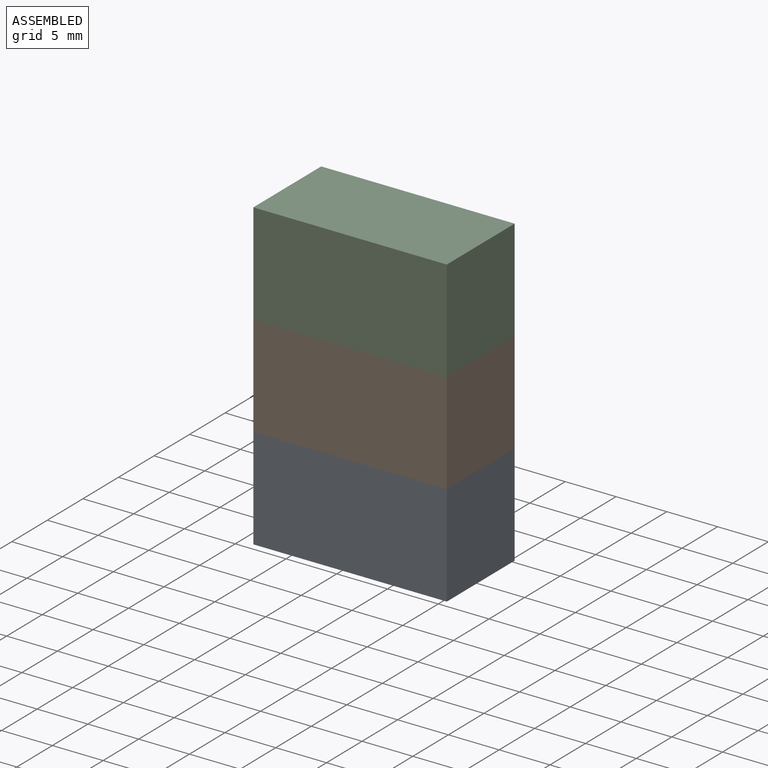
[diagram: assembled view]
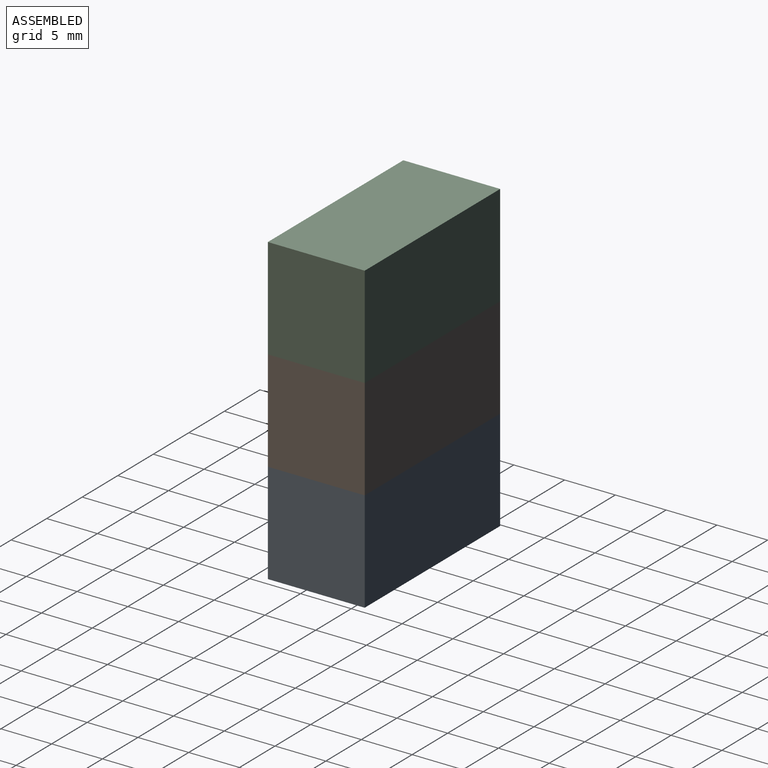
[diagram: assembled view, second angle]
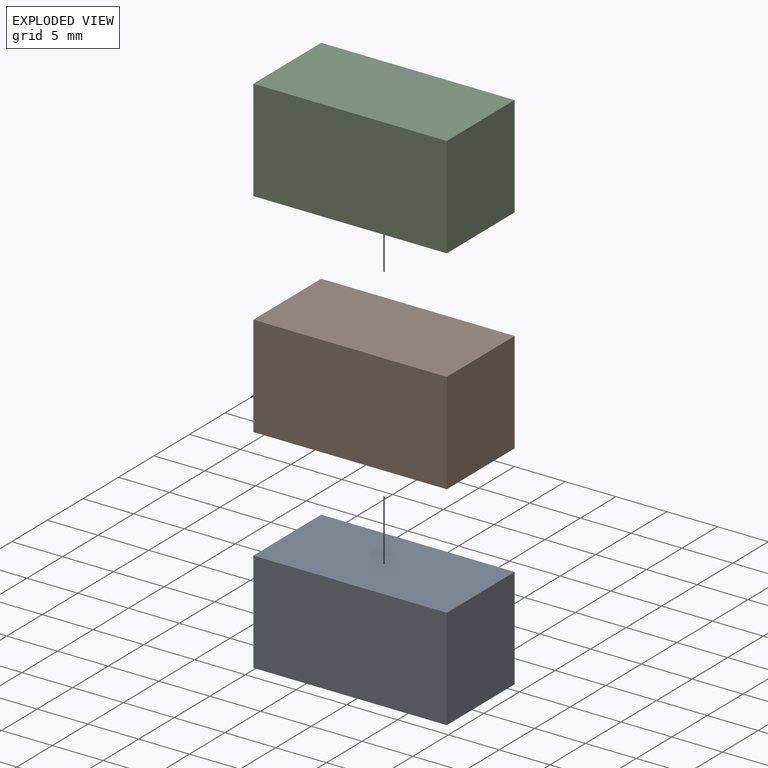
[diagram: exploded view]
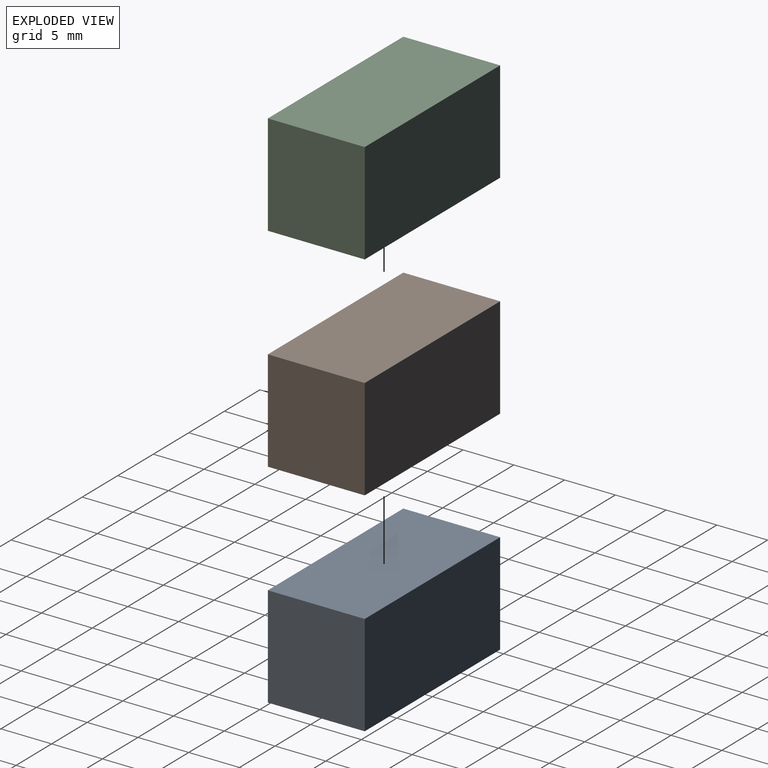
[diagram: exploded view, second angle]
FCSTD DOCUMENT  (FreeCAD 0.21R39043 (Git))
Label: test
License: All rights reserved
LicenseURL: https://en.wikipedia.org/wiki/All_rights_reserved
objects: App::FeaturePython×4, App::Link×3, Part::FeaturePython×3
note: 2 computed .brp shape members not serialized (recipe doc carries the construction recipe); baked Part::Feature solids carry a one-line shape summary decoded from their .brp
EXTERNAL_REF file=waveguide1.FCStd obj=Part
EXTERNAL_REF file=waveguide2.FCStd obj=Part
EXTERNAL_REF file=waveguide3.FCStd obj=Part

FEATURE [App::Link] Link  label="CMP_waveguide1"
  AutoLinkLabel = false
  AutoPlacement = true
  LinkedObject = -> <external waveguide1.FCStd>#Part
  SyncGroupVisibility = false
  TreeRank = 0
  _LinkOwner = 858
  _LinkVersion = 1
FEATURE [App::Link] Link001  label="CMP_waveguide2"
  AutoLinkLabel = false
  AutoPlacement = true
  LinkPlacement = pos=(0,-1.41144e-06,10) rot=(0,0,1;0rad)
  LinkedObject = -> <external waveguide2.FCStd>#Part
  Placement = pos=(0,-1.41144e-06,10) rot=(0,0,1;0rad)
  SyncGroupVisibility = false
  TreeRank = 0
  _LinkOwner = 858
  _LinkVersion = 1
FEATURE [App::Link] Link002  label="CMP_waveguide3"
  AutoLinkLabel = false
  AutoPlacement = true
  LinkPlacement = pos=(-2.38419e-06,0,20) rot=(0,0,1;0rad)
  LinkedObject = -> <external waveguide3.FCStd>#Part
  Placement = pos=(-2.38419e-06,0,20) rot=(0,0,1;0rad)
  SyncGroupVisibility = false
  TreeRank = 0
  _LinkOwner = 858
  _LinkVersion = 1
FEATURE [Part::FeaturePython] Parts  # WARN: FeaturePython — macro-defined, semantics opaque (R4)
  FixShape = 1
  Group = -> [Link,Link001,Link002]
  GroupMode = 0
  InvalidShape = false
  TreeRank = 0
  ValidateShape = false
  _LinkVersion = 1
FEATURE [Part::FeaturePython] Assembly  label="NET_waveguide"  # WARN: FeaturePython — macro-defined, semantics opaque (R4)
  AutoRelax = true
  BuildShape = 0
  FixShape = 1
  Freeze = false
  Group = -> [Constraints,Elements,Parts]
  InvalidShape = false
  TreeRank = 0
  ValidateShape = false
  Verbose = false
  _LinkVersion = 1
  _SolverType = 1
  _Version = 1
FEATURE [App::FeaturePython] Constraints  # WARN: FeaturePython — macro-defined, semantics opaque (R4)
  Group = -> [Constraint]
  TreeRank = 0
  _LinkVersion = 1
  _Version = 1
FEATURE [App::FeaturePython] Elements  # WARN: FeaturePython — macro-defined, semantics opaque (R4)
  Group = -> [_Element]
  TreeRank = 0
  _LinkVersion = 1
FEATURE [App::FeaturePython] Constraint  label="Locked"  # WARN: FeaturePython — macro-defined, semantics opaque (R4)
  Disabled = false
  Group = -> [ElementLink]
  TreeRank = 0
  _ConstraintType = 0
  _LinkVersion = 1
  _Parent = -> Constraints
FEATURE [App::FeaturePython] ElementLink  label="_Element"  # link proxy (typed FeaturePython)
  LinkTransform = true
  LinkedObject = -> _Element
  TreeRank = 0
  _LinkVersion = 1
  _Parent = -> Constraint
FEATURE [Part::FeaturePython] _Element  # link proxy (typed FeaturePython)
  Detach = false
  FixShape = 1
  InvalidShape = false
  LinkTransform = true
  LinkedObject = -> Link [Body.Pad.Face6]
  TreeRank = 0
  ValidateShape = false
  _LinkVersion = 1
  _Parent = -> Elements

RESOLVED EXTERNAL PARTS (link-assembly join: the EXTERNAL_REF files above that resolve inside this repo's crawl, each included once):
---- part waveguide1.FCStd = doc fcstd_ebade31a25a9 ----
FCSTD DOCUMENT  (FreeCAD 0.21R39043 (Git))
Label: waveguide1
License: All rights reserved
LicenseURL: https://en.wikipedia.org/wiki/All_rights_reserved
objects: PartDesign::Body×3, Sketcher::SketchObject×2, PartDesign::Pad×1, PartDesign::SubShapeBinder×1, Part::SubShapeBinder×1, PartDesign::Extrusion×1, App::Part×1
note: 15 computed .brp shape members not serialized (recipe doc carries the construction recipe); baked Part::Feature solids carry a one-line shape summary decoded from their .brp
EXTERNAL_REF file=test.FCStd obj=Assembly

FEATURE [Sketcher::SketchObject] Sketch
  ArcFitTolerance = 1e-06
  AttachmentSupport = -> [XZ_Plane]
  ExternalBSplineMaxDegree = 5
  ExternalBSplineTolerance = 0.0001
  FixShape = 1
  FullyConstrained = true
  InternalTolerance = 1e-06
  InvalidShape = false
  MakeInternals = false
  MapMode = 5
  Placement = pos=(0,0,0) rot=(1,0,0;1.5708rad)
  Support = -> [XZ_Plane]
  TreeRank = 14
  ValidateShape = false
  sketch-geometry (4):
    g0: LineSegment StartX=-9.525 StartY=5 StartZ=0 EndX=9.525 EndY=5 EndZ=0
    g1: LineSegment StartX=9.525 StartY=5 StartZ=0 EndX=9.525 EndY=-5 EndZ=0
    g2: LineSegment StartX=9.525 StartY=-5 StartZ=0 EndX=-9.525 EndY=-5 EndZ=0
    g3: LineSegment StartX=-9.525 StartY=-5 StartZ=0 EndX=-9.525 EndY=5 EndZ=0
  constraints (11):
    c: Coincident(g0,g1)
    c: Coincident(g1,g2)
    c: Coincident(g2,g3)
    c: Coincident(g3,g0)
    c: Horizontal(g0)
    c: Horizontal(g2)
    c: Vertical(g1)
    c: DistanceY(g3,g3) = 10
    c: DistanceX(g2,g2) = 19.05
    c: Vertical(g3)
    c: Symmetric(g0,g2,g-1)
FEATURE [PartDesign::Pad] Pad
  AddSubType = 0
  AlongSketchNormal = false
  AutoTaperInnerAngle = true
  CheckUpToFaceLimits = true
  ClaimChildren = false
  Direction = (0,-1,0)
  Fit = 0
  FitJoin = 0
  FixShape = 1
  InnerFit = 0
  InnerFitJoin = 0
  InvalidShape = false
  Length = 9.54
  Length2 = 10
  Linearize = true
  NewSolid = false
  Profile = -> Sketch
  ReferenceAxis = -> Sketch [N_Axis]
  Suppress = false
  TaperInnerAngle = 0
  TaperInnerAngleRev = 0
  TreeRank = 15
  Type = 0
  ValidateShape = true
  _ProfileBasedVersion = 1
FEATURE [PartDesign::Body] Body  label="DIEL_CAVITY"
  AutoGroupSolids = false
  ClaimAllChildren = false
  ExportMode = 0
  FixShape = 1
  Group = -> [Sketch,Pad]
  InvalidShape = false
  Origin = -> Origin001
  Tip = -> Pad
  TreeRank = 13
  ValidateShape = false
  _ExportChildren = -> [Pad]
  _GroupVersion = 1
FEATURE [PartDesign::SubShapeBinder] Binder  label="Binder(Pad)"
  BindCopyOnChange = 0
  BindMode = 0
  ClaimChildren = false
  Context = -> Part [Body001.Binder.]
  EdgeTolerance = 1e-06
  FillStyle = 0
  FixShape = 1
  Fuse = false
  Group_EnableExport = true
  InvalidShape = false
  MakeFace = true
  MergeEdges = true
  OffsetFill = false
  OffsetIntersection = false
  OffsetJoinType = 0
  OffsetOpenResult = false
  Outline = false
  PartialLoad = false
  Relative = true
  SplitEdges = false
  Support = -> [Body[Pad.Face3]]
  TightBound = false
  TreeRank = 37
  ValidateShape = false
  _Version = 8
FEATURE [PartDesign::Body] Body001  label="WGP_1"
  AutoGroupSolids = false
  ClaimAllChildren = false
  ExportMode = 2
  FixShape = 1
  Group = -> [Binder]
  InvalidShape = false
  Origin = -> Origin002
  TreeRank = 25
  ValidateShape = false
  _ExportChildren = -> [Binder]
  _GroupVersion = 1
FEATURE [Part::SubShapeBinder] Import  label="Import(Pad)"
  BindCopyOnChange = 0
  BindMode = 0
  ClaimChildren = false
  Context = -> <external test.FCStd>#Assembly [Parts.Link.Body002.Import.]
  EdgeTolerance = 1e-06
  FillStyle = 0
  FixShape = 1
  Fuse = false
  Group_EnableExport = false
  InvalidShape = false
  MakeFace = false
  MergeEdges = true
  OffsetFill = false
  OffsetIntersection = false
  OffsetJoinType = 0
  OffsetOpenResult = false
  Outline = false
  PartialLoad = false
  Relative = true
  SplitEdges = false
  Support = -> [Body[Pad.]]
  TightBound = false
  TreeRank = 49
  ValidateShape = false
  _Version = 8
FEATURE [Sketcher::SketchObject] Sketch001
  ArcFitTolerance = 1e-06
  AttachmentSupport = -> [XZ_Plane002]
  ExternalBSplineMaxDegree = 5
  ExternalBSplineTolerance = 0.0001
  ExternalGeometry = -> [Import]
  FixShape = 1
  FullyConstrained = true
  Group_EnableExport = false
  InternalTolerance = 1e-06
  InvalidShape = false
  MakeInternals = false
  MapMode = 5
  Placement = pos=(0,0,0) rot=(1,0,0;1.5708rad)
  Support = -> [XZ_Plane002]
  TreeRank = 48
  ValidateShape = false
  sketch-geometry (1):
    g0: LineSegment StartX=-9.525 StartY=0 StartZ=0 EndX=9.525 EndY=0 EndZ=0
  constraints (4):
    c: PointOnObject(g0,g-3)
    c: PointOnObject(g0,g-4)
    c: Horizontal(g0)
    c: PointOnObject(g-1,g0)
FEATURE [PartDesign::Extrusion] Extrusion
  AddSubType = 0
  AlongSketchNormal = false
  AutoTaperInnerAngle = true
  CheckUpToFaceLimits = true
  ClaimChildren = false
  Direction = (0,-1,2e-16)
  Fit = 0
  FitJoin = 0
  FixShape = 1
  Group_EnableExport = true
  InnerFit = 0
  InnerFitJoin = 0
  InvalidShape = false
  Length = 9.54
  Length2 = 10
  Linearize = true
  NewSolid = false
  Profile = -> Sketch001
  ReferenceAxis = -> Sketch001 [N_Axis]
  Suppress = false
  TaperInnerAngle = 0
  TaperInnerAngleRev = 0
  TreeRank = 50
  Type = 0
  ValidateShape = true
  _ProfileBasedVersion = 1
FEATURE [PartDesign::Body] Body002  label="SPLIT_1"
  AutoGroupSolids = false
  ClaimAllChildren = false
  ExportMode = 2
  FixShape = 1
  Group = -> [Sketch001,Import,Extrusion]
  InvalidShape = false
  Origin = -> Origin003
  TreeRank = 47
  ValidateShape = false
  _ExportChildren = -> [Sketch001,Import,Extrusion]
  _GroupVersion = 1
FEATURE [App::Part] Part  label="CMP_waveguide1"
  ClaimAllChildren = false
  ExportMode = 1
  Group = -> [Body,Body001,Body002]
  Origin = -> Origin
  TreeRank = 3
  _ExportChildren = -> [Body,Body001,Body002]
  _GroupVersion = 1
---- part waveguide2.FCStd = doc fcstd_7e9fcc0126a5 ----
FCSTD DOCUMENT  (FreeCAD 0.21R39043 (Git))
Label: waveguide2
License: All rights reserved
LicenseURL: https://en.wikipedia.org/wiki/All_rights_reserved
objects: Sketcher::SketchObject×2, PartDesign::Body×2, PartDesign::Pad×1, Part::SubShapeBinder×1, PartDesign::Extrusion×1, App::Part×1
note: 13 computed .brp shape members not serialized (recipe doc carries the construction recipe); baked Part::Feature solids carry a one-line shape summary decoded from their .brp

FEATURE [Sketcher::SketchObject] Sketch
  ArcFitTolerance = 1e-06
  AttachmentSupport = -> [XZ_Plane]
  ExternalBSplineMaxDegree = 5
  ExternalBSplineTolerance = 0.0001
  FixShape = 1
  FullyConstrained = true
  InternalTolerance = 1e-06
  InvalidShape = false
  MakeInternals = false
  MapMode = 5
  Placement = pos=(0,0,0) rot=(1,0,0;1.5708rad)
  Support = -> [XZ_Plane]
  TreeRank = 14
  ValidateShape = false
  sketch-geometry (4):
    g0: LineSegment StartX=-9.525 StartY=5 StartZ=0 EndX=9.525 EndY=5 EndZ=0
    g1: LineSegment StartX=9.525 StartY=5 StartZ=0 EndX=9.525 EndY=-5 EndZ=0
    g2: LineSegment StartX=9.525 StartY=-5 StartZ=0 EndX=-9.525 EndY=-5 EndZ=0
    g3: LineSegment StartX=-9.525 StartY=-5 StartZ=0 EndX=-9.525 EndY=5 EndZ=0
  constraints (11):
    c: Coincident(g0,g1)
    c: Coincident(g1,g2)
    c: Coincident(g2,g3)
    c: Coincident(g3,g0)
    c: Horizontal(g0)
    c: Horizontal(g2)
    c: Vertical(g1)
    c: DistanceY(g3,g3) = 10
    c: DistanceX(g2,g2) = 19.05
    c: Vertical(g3)
    c: Symmetric(g0,g2,g-1)
FEATURE [PartDesign::Pad] Pad
  AddSubType = 0
  AlongSketchNormal = false
  AutoTaperInnerAngle = true
  CheckUpToFaceLimits = true
  ClaimChildren = false
  Direction = (0,-1,0)
  Fit = 0
  FitJoin = 0
  FixShape = 1
  InnerFit = 0
  InnerFitJoin = 0
  InvalidShape = false
  Length = 9.54
  Length2 = 10
  Linearize = true
  NewSolid = false
  Profile = -> Sketch
  ReferenceAxis = -> Sketch [N_Axis]
  Suppress = false
  TaperInnerAngle = 0
  TaperInnerAngleRev = 0
  TreeRank = 15
  Type = 0
  ValidateShape = true
  _ProfileBasedVersion = 1
FEATURE [PartDesign::Body] Body  label="DIEL_CAVITY"
  AutoGroupSolids = false
  ClaimAllChildren = false
  ExportMode = 0
  FixShape = 1
  Group = -> [Sketch,Pad]
  InvalidShape = false
  Origin = -> Origin001
  Tip = -> Pad
  TreeRank = 13
  ValidateShape = false
  _ExportChildren = -> [Pad]
  _GroupVersion = 1
FEATURE [Part::SubShapeBinder] Import  label="Import(Pad)"
  BindCopyOnChange = 0
  BindMode = 0
  ClaimChildren = false
  Context = -> Part [Body001.Import.]
  EdgeTolerance = 1e-06
  FillStyle = 0
  FixShape = 1
  Fuse = false
  Group_EnableExport = false
  InvalidShape = false
  MakeFace = false
  MergeEdges = true
  OffsetFill = false
  OffsetIntersection = false
  OffsetJoinType = 0
  OffsetOpenResult = false
  Outline = false
  PartialLoad = false
  Relative = true
  SplitEdges = false
  Support = -> [Body[Pad.]]
  TightBound = false
  TreeRank = 26
  ValidateShape = false
  _Version = 8
FEATURE [Sketcher::SketchObject] Sketch001
  ArcFitTolerance = 1e-06
  AttachmentSupport = -> [Import]
  ExternalBSplineMaxDegree = 5
  ExternalBSplineTolerance = 0.0001
  ExternalGeometry = -> [Import]
  FixShape = 1
  FullyConstrained = true
  Group_EnableExport = false
  InternalTolerance = 1e-06
  InvalidShape = false
  MakeInternals = false
  MapMode = 5
  Placement = pos=(0,-1.1e-15,-5) rot=(1,0,0;3.14159rad)
  Support = -> [Import]
  TreeRank = 27
  ValidateShape = false
  sketch-geometry (1):
    g0: LineSegment StartX=-9.525 StartY=4.77 StartZ=0 EndX=9.525 EndY=4.77 EndZ=0
  constraints (2):
    c: Symmetric(g-3,g-3,g0)
    c: Symmetric(g-4,g-4,g0)
FEATURE [PartDesign::Extrusion] Extrusion
  AddSubType = 0
  AlongSketchNormal = false
  AutoTaperInnerAngle = true
  CheckUpToFaceLimits = true
  ClaimChildren = false
  Direction = (0,-2e-16,-1)
  Fit = 0
  FitJoin = 0
  FixShape = 1
  Group_EnableExport = true
  InnerFit = 0
  InnerFitJoin = 0
  InvalidShape = false
  Length = 10
  Length2 = 10
  Linearize = true
  NewSolid = false
  Profile = -> Sketch001
  ReferenceAxis = -> Sketch001 [N_Axis]
  Reversed = true
  Suppress = false
  TaperInnerAngle = 0
  TaperInnerAngleRev = 0
  TreeRank = 28
  Type = 0
  ValidateShape = true
  _ProfileBasedVersion = 1
FEATURE [PartDesign::Body] Body001  label="SPLIT_1"
  AutoGroupSolids = false
  ClaimAllChildren = false
  ExportMode = 2
  FixShape = 1
  Group = -> [Import,Sketch001,Extrusion]
  InvalidShape = false
  Origin = -> Origin002
  TreeRank = 25
  ValidateShape = false
  _ExportChildren = -> [Import,Sketch001,Extrusion]
  _GroupVersion = 1
FEATURE [App::Part] Part  label="CMP_waveguide2"
  ClaimAllChildren = false
  ExportMode = 1
  Group = -> [Body,Body001]
  Origin = -> Origin
  TreeRank = 3
  _ExportChildren = -> [Body,Body001]
  _GroupVersion = 1
---- part waveguide3.FCStd = doc fcstd_35ab496923bf ----
FCSTD DOCUMENT  (FreeCAD 0.21R38998 (Git))
Label: waveguide3
License: All rights reserved
LicenseURL: https://en.wikipedia.org/wiki/All_rights_reserved
objects: PartDesign::Body×2, Sketcher::SketchObject×1, PartDesign::Pad×1, PartDesign::SubShapeBinder×1, App::Part×1
note: 8 computed .brp shape members not serialized (recipe doc carries the construction recipe); baked Part::Feature solids carry a one-line shape summary decoded from their .brp

FEATURE [Sketcher::SketchObject] Sketch
  ArcFitTolerance = 1e-06
  AttachmentSupport = -> [XZ_Plane]
  ExternalBSplineMaxDegree = 5
  ExternalBSplineTolerance = 0.0001
  FixShape = 1
  FullyConstrained = true
  InternalTolerance = 1e-06
  InvalidShape = false
  MakeInternals = false
  MapMode = 5
  Placement = pos=(0,0,0) rot=(1,0,0;1.5708rad)
  Support = -> [XZ_Plane]
  TreeRank = 14
  ValidateShape = false
  sketch-geometry (4):
    g0: LineSegment StartX=-9.525 StartY=5 StartZ=0 EndX=9.525 EndY=5 EndZ=0
    g1: LineSegment StartX=9.525 StartY=5 StartZ=0 EndX=9.525 EndY=-5 EndZ=0
    g2: LineSegment StartX=9.525 StartY=-5 StartZ=0 EndX=-9.525 EndY=-5 EndZ=0
    g3: LineSegment StartX=-9.525 StartY=-5 StartZ=0 EndX=-9.525 EndY=5 EndZ=0
  constraints (11):
    c: Coincident(g0,g1)
    c: Coincident(g1,g2)
    c: Coincident(g2,g3)
    c: Coincident(g3,g0)
    c: Horizontal(g0)
    c: Horizontal(g2)
    c: Vertical(g1)
    c: DistanceY(g3,g3) = 10
    c: DistanceX(g2,g2) = 19.05
    c: Vertical(g3)
    c: Symmetric(g0,g2,g-1)
FEATURE [PartDesign::Pad] Pad
  AddSubType = 0
  AlongSketchNormal = false
  AutoTaperInnerAngle = true
  CheckUpToFaceLimits = true
  ClaimChildren = false
  Direction = (0,-1,0)
  Fit = 0
  FitJoin = 0
  FixShape = 1
  InnerFit = 0
  InnerFitJoin = 0
  InvalidShape = false
  Length = 9.54
  Length2 = 10
  Linearize = true
  NewSolid = false
  Profile = -> Sketch
  ReferenceAxis = -> Sketch [N_Axis]
  Suppress = false
  TaperInnerAngle = 0
  TaperInnerAngleRev = 0
  TreeRank = 15
  Type = 0
  ValidateShape = true
  _ProfileBasedVersion = 1
FEATURE [PartDesign::Body] Body  label="DIEL_CAVITY"
  AutoGroupSolids = false
  ClaimAllChildren = false
  ExportMode = 0
  FixShape = 1
  Group = -> [Sketch,Pad]
  InvalidShape = false
  Origin = -> Origin001
  Tip = -> Pad
  TreeRank = 13
  ValidateShape = false
  _ExportChildren = -> [Pad]
  _GroupVersion = 1
FEATURE [PartDesign::SubShapeBinder] Binder  label="Binder(Pad)"
  BindCopyOnChange = 0
  BindMode = 0
  ClaimChildren = false
  Context = -> Part [Body001.Binder.]
  EdgeTolerance = 1e-06
  FillStyle = 0
  FixShape = 1
  Fuse = false
  Group_EnableExport = true
  InvalidShape = false
  MakeFace = true
  MergeEdges = true
  OffsetFill = false
  OffsetIntersection = false
  OffsetJoinType = 0
  OffsetOpenResult = false
  Outline = false
  PartialLoad = false
  Relative = true
  SplitEdges = false
  Support = -> [Body[Pad.Face1]]
  TightBound = false
  TreeRank = 26
  ValidateShape = false
  _Version = 8
FEATURE [PartDesign::Body] Body001  label="WGP_1"
  AutoGroupSolids = false
  ClaimAllChildren = false
  ExportMode = 2
  FixShape = 1
  Group = -> [Binder]
  InvalidShape = false
  Origin = -> Origin002
  TreeRank = 25
  ValidateShape = false
  _ExportChildren = -> [Binder]
  _GroupVersion = 1
FEATURE [App::Part] Part  label="CMP_waveguide3"
  ClaimAllChildren = false
  ExportMode = 1
  Group = -> [Body,Body001]
  Origin = -> Origin
  TreeRank = 3
  _ExportChildren = -> [Body,Body001]
  _GroupVersion = 1
